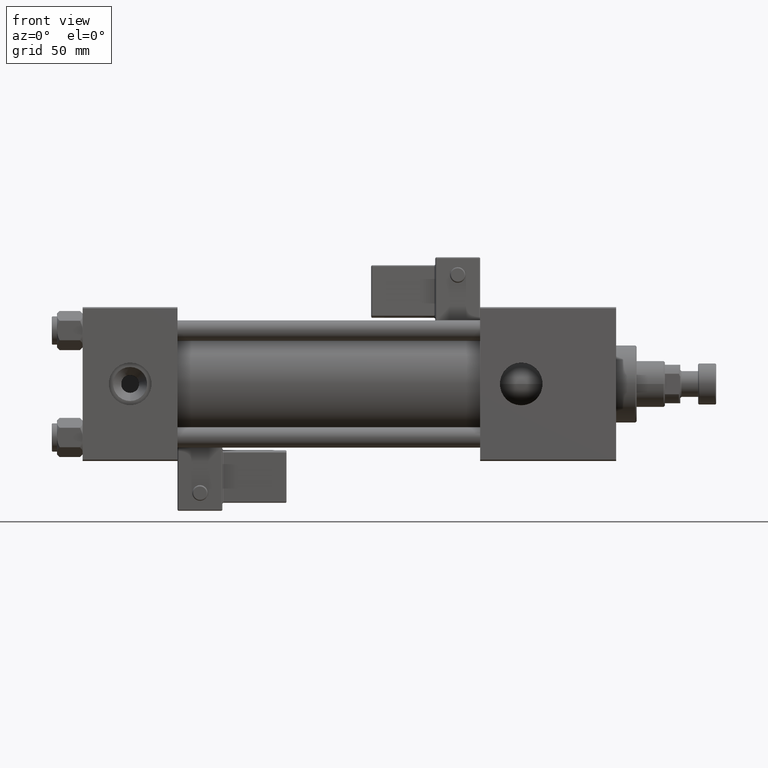
[diagram: clean part render]
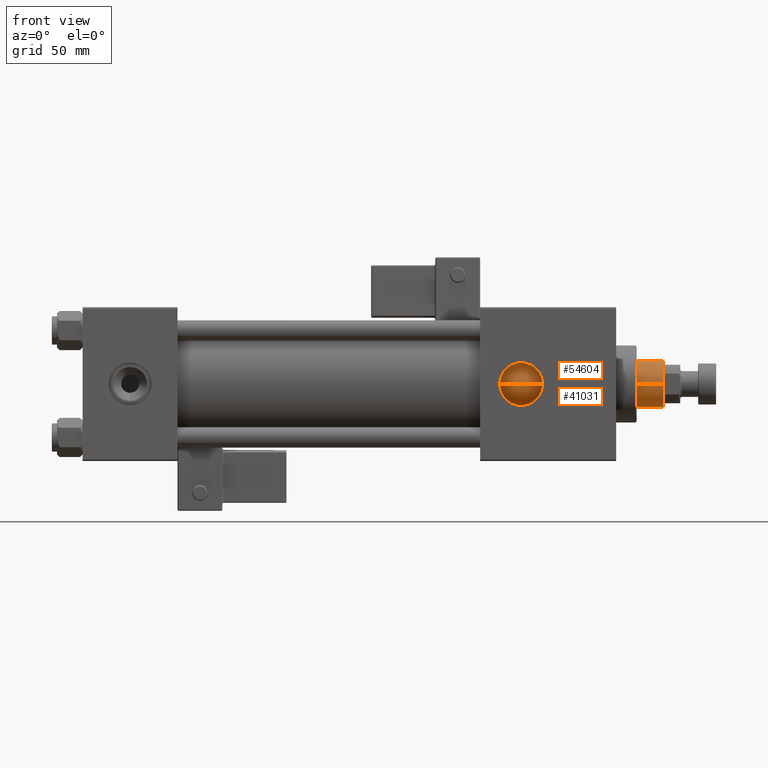
[diagram: same view with one multi-face feature highlighted, each face labeled with its STEP entity id]
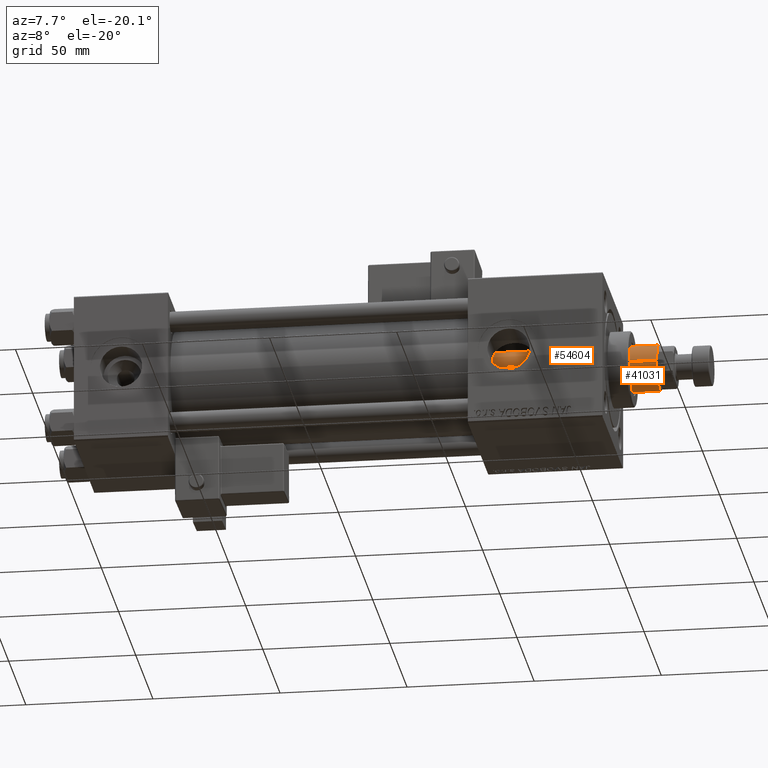
[diagram: same view with one multi-face feature highlighted, each face labeled with its STEP entity id]
A machine part, front view. The highlighted faces form ONE feature: a constant-radius fillet chain: 2 tangent blend faces with common blend radius 9 mm. The faces share edges in the B-rep.
A second angle (auxiliary view) of the same feature is appended — it is thin or edge-on in the first view.
Their STEP definitions:
[1] entity #54604 (Cylinder):
#1087 = ORIENTED_EDGE ( 'NONE', *, *, #26184, .F. ) ;
#2483 = CARTESIAN_POINT ( 'NONE',  ( 0.000000000000000000, 0.000000000000000000, 38.00000000000000000 ) ) ;
#4249 = CYLINDRICAL_SURFACE ( 'NONE', #43470, 9.000000000000000000 ) ;
#5618 = EDGE_CURVE ( 'NONE', #36370, #44487, #19645, .T. ) ;
#7160 = CARTESIAN_POINT ( 'NONE',  ( -9.000000000000000000, 0.000000000000000000, 189.5000000000000284 ) ) ;
#7606 = DIRECTION ( 'NONE',  ( -0.000000000000000000, -0.000000000000000000, -1.000000000000000000 ) ) ;
#8170 = AXIS2_PLACEMENT_3D ( 'NONE', #2483, #28321, #28598 ) ;
#8441 = CARTESIAN_POINT ( 'NONE',  ( 0.000000000000000000, 0.000000000000000000, 190.0000000000000000 ) ) ;
#10516 = EDGE_LOOP ( 'NONE', ( #1087, #50120, #24899, #18892 ) ) ;
#11074 = LINE ( 'NONE', #49932, #22445 ) ;
#12335 = DIRECTION ( 'NONE',  ( -1.000000000000000000, 0.000000000000000000, 0.000000000000000000 ) ) ;
#14914 = CARTESIAN_POINT ( 'NONE',  ( 0.000000000000000000, 0.000000000000000000, 189.5000000000000284 ) ) ;
#15689 = VERTEX_POINT ( 'NONE', #7160 ) ;
#18892 = ORIENTED_EDGE ( 'NONE', *, *, #5618, .T. ) ;
#19645 = CIRCLE ( 'NONE', #8170, 9.000000000000000000 ) ;
#22429 = DIRECTION ( 'NONE',  ( 1.000000000000000000, 0.000000000000000000, 0.000000000000000000 ) ) ;
#22445 = VECTOR ( 'NONE', #32459, 1000.000000000000000 ) ;
#22651 = VERTEX_POINT ( 'NONE', #35250 ) ;
#24899 = ORIENTED_EDGE ( 'NONE', *, *, #54810, .T. ) ;
#25907 = LINE ( 'NONE', #47002, #27511 ) ;
#26184 = EDGE_CURVE ( 'NONE', #22651, #44487, #11074, .T. ) ;
#26869 = DIRECTION ( 'NONE',  ( 0.000000000000000000, 0.000000000000000000, -1.000000000000000000 ) ) ;
#27511 = VECTOR ( 'NONE', #46728, 1000.000000000000000 ) ;
#28321 = DIRECTION ( 'NONE',  ( 0.000000000000000000, 0.000000000000000000, 1.000000000000000000 ) ) ;
#28598 = DIRECTION ( 'NONE',  ( 1.000000000000000000, 0.000000000000000000, 0.000000000000000000 ) ) ;
#29842 = EDGE_CURVE ( 'NONE', #22651, #15689, #32243, .T. ) ;
#31053 = CARTESIAN_POINT ( 'NONE',  ( 9.000000000000000000, 1.102182119232617714E-15, 38.00000000000000000 ) ) ;
#32243 = CIRCLE ( 'NONE', #39335, 9.000000000000000000 ) ;
#32459 = DIRECTION ( 'NONE',  ( -0.000000000000000000, -0.000000000000000000, -1.000000000000000000 ) ) ;
#35250 = CARTESIAN_POINT ( 'NONE',  ( 9.000000000000000000, 1.102182119232617714E-15, 189.5000000000000284 ) ) ;
#36370 = VERTEX_POINT ( 'NONE', #37514 ) ;
#37514 = CARTESIAN_POINT ( 'NONE',  ( -9.000000000000000000, 0.000000000000000000, 38.00000000000000000 ) ) ;
#39335 = AXIS2_PLACEMENT_3D ( 'NONE', #14914, #26869, #22429 ) ;
#43470 = AXIS2_PLACEMENT_3D ( 'NONE', #8441, #7606, #12335 ) ;
#44487 = VERTEX_POINT ( 'NONE', #31053 ) ;
#46452 = FACE_OUTER_BOUND ( 'NONE', #10516, .T. ) ;
#46728 = DIRECTION ( 'NONE',  ( -0.000000000000000000, -0.000000000000000000, -1.000000000000000000 ) ) ;
#47002 = CARTESIAN_POINT ( 'NONE',  ( -9.000000000000000000, 0.000000000000000000, 190.0000000000000000 ) ) ;
#49932 = CARTESIAN_POINT ( 'NONE',  ( 9.000000000000000000, 1.102182119232617714E-15, 190.0000000000000000 ) ) ;
#50120 = ORIENTED_EDGE ( 'NONE', *, *, #29842, .T. ) ;
#54604 = ADVANCED_FACE ( 'NONE', ( #46452 ), #4249, .T. ) ;
#54810 = EDGE_CURVE ( 'NONE', #15689, #36370, #25907, .T. ) ;
[2] entity #41031 (Cylinder):
#2403 = AXIS2_PLACEMENT_3D ( 'NONE', #17609, #52290, #22043 ) ;
#6410 = DIRECTION ( 'NONE',  ( 1.000000000000000000, 0.000000000000000000, 0.000000000000000000 ) ) ;
#7160 = CARTESIAN_POINT ( 'NONE',  ( -9.000000000000000000, 0.000000000000000000, 189.5000000000000284 ) ) ;
#7714 = DIRECTION ( 'NONE',  ( 0.000000000000000000, 0.000000000000000000, 1.000000000000000000 ) ) ;
#10305 = CARTESIAN_POINT ( 'NONE',  ( 0.000000000000000000, 0.000000000000000000, 189.5000000000000284 ) ) ;
#11074 = LINE ( 'NONE', #49932, #22445 ) ;
#13079 = CIRCLE ( 'NONE', #34353, 9.000000000000000000 ) ;
#14411 = ORIENTED_EDGE ( 'NONE', *, *, #54810, .F. ) ;
#14439 = CIRCLE ( 'NONE', #24202, 9.000000000000000000 ) ;
#15689 = VERTEX_POINT ( 'NONE', #7160 ) ;
#17609 = CARTESIAN_POINT ( 'NONE',  ( 0.000000000000000000, 0.000000000000000000, 190.0000000000000000 ) ) ;
#20142 = FACE_OUTER_BOUND ( 'NONE', #47848, .T. ) ;
#20604 = EDGE_CURVE ( 'NONE', #15689, #22651, #13079, .T. ) ;
#22043 = DIRECTION ( 'NONE',  ( -1.000000000000000000, 0.000000000000000000, 0.000000000000000000 ) ) ;
#22319 = CYLINDRICAL_SURFACE ( 'NONE', #2403, 9.000000000000000000 ) ;
#22445 = VECTOR ( 'NONE', #32459, 1000.000000000000000 ) ;
#22651 = VERTEX_POINT ( 'NONE', #35250 ) ;
#24202 = AXIS2_PLACEMENT_3D ( 'NONE', #50177, #7714, #28548 ) ;
#24975 = EDGE_CURVE ( 'NONE', #44487, #36370, #14439, .T. ) ;
#25907 = LINE ( 'NONE', #47002, #27511 ) ;
#26184 = EDGE_CURVE ( 'NONE', #22651, #44487, #11074, .T. ) ;
#26419 = ORIENTED_EDGE ( 'NONE', *, *, #26184, .T. ) ;
#26918 = ORIENTED_EDGE ( 'NONE', *, *, #24975, .T. ) ;
#27511 = VECTOR ( 'NONE', #46728, 1000.000000000000000 ) ;
#28548 = DIRECTION ( 'NONE',  ( 1.000000000000000000, 0.000000000000000000, 0.000000000000000000 ) ) ;
#31053 = CARTESIAN_POINT ( 'NONE',  ( 9.000000000000000000, 1.102182119232617714E-15, 38.00000000000000000 ) ) ;
#32459 = DIRECTION ( 'NONE',  ( -0.000000000000000000, -0.000000000000000000, -1.000000000000000000 ) ) ;
#34353 = AXIS2_PLACEMENT_3D ( 'NONE', #10305, #44690, #6410 ) ;
#35250 = CARTESIAN_POINT ( 'NONE',  ( 9.000000000000000000, 1.102182119232617714E-15, 189.5000000000000284 ) ) ;
#36370 = VERTEX_POINT ( 'NONE', #37514 ) ;
#37514 = CARTESIAN_POINT ( 'NONE',  ( -9.000000000000000000, 0.000000000000000000, 38.00000000000000000 ) ) ;
#41031 = ADVANCED_FACE ( 'NONE', ( #20142 ), #22319, .T. ) ;
#44487 = VERTEX_POINT ( 'NONE', #31053 ) ;
#44506 = ORIENTED_EDGE ( 'NONE', *, *, #20604, .T. ) ;
#44690 = DIRECTION ( 'NONE',  ( 0.000000000000000000, 0.000000000000000000, -1.000000000000000000 ) ) ;
#46728 = DIRECTION ( 'NONE',  ( -0.000000000000000000, -0.000000000000000000, -1.000000000000000000 ) ) ;
#47002 = CARTESIAN_POINT ( 'NONE',  ( -9.000000000000000000, 0.000000000000000000, 190.0000000000000000 ) ) ;
#47848 = EDGE_LOOP ( 'NONE', ( #44506, #26419, #26918, #14411 ) ) ;
#49932 = CARTESIAN_POINT ( 'NONE',  ( 9.000000000000000000, 1.102182119232617714E-15, 190.0000000000000000 ) ) ;
#50177 = CARTESIAN_POINT ( 'NONE',  ( 0.000000000000000000, 0.000000000000000000, 38.00000000000000000 ) ) ;
#52290 = DIRECTION ( 'NONE',  ( -0.000000000000000000, -0.000000000000000000, -1.000000000000000000 ) ) ;
#54810 = EDGE_CURVE ( 'NONE', #15689, #36370, #25907, .T. ) ;